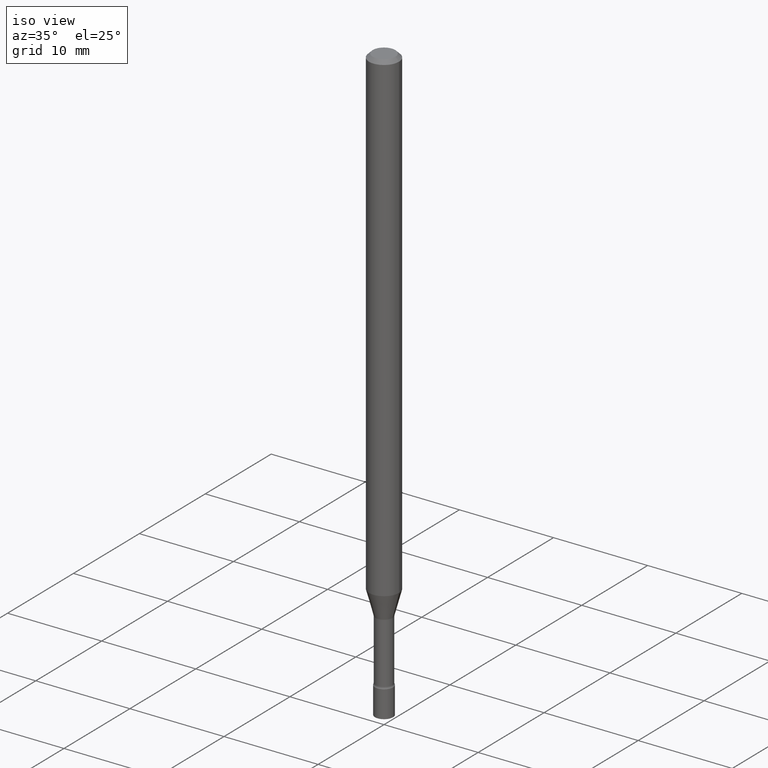
[diagram: clean part render]
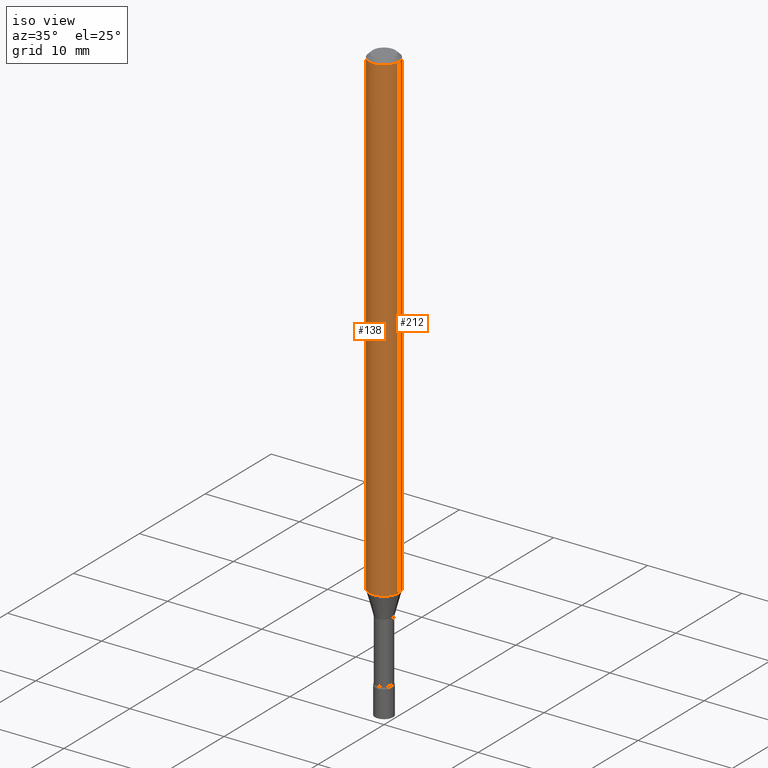
[diagram: same view with one multi-face feature highlighted, each face labeled with its STEP entity id]
A machine part, iso view. The highlighted faces form ONE feature: a constant-radius fillet chain: 2 tangent blend faces with common blend radius 1.5875 mm. The faces share edges in the B-rep.
Their STEP definitions:
[1] entity #138 (Cylinder):
#1 = EDGE_CURVE ( 'NONE', #271, #263, #385, .T. ) ;
#8 = AXIS2_PLACEMENT_3D ( 'NONE', #512, #240, #83 ) ;
#20 = CARTESIAN_POINT ( 'NONE',  ( 0.06250000000000000000, -4.364351673553916694E-16, 3.047610484872459871E-30 ) ) ;
#29 = CYLINDRICAL_SURFACE ( 'NONE', #8, 0.06250000000000000000 ) ;
#40 = VERTEX_POINT ( 'NONE', #189 ) ;
#53 = VECTOR ( 'NONE', #232, 39.37007874015748143 ) ;
#62 = CARTESIAN_POINT ( 'NONE',  ( 4.947920986193955666E-29, -7.064319833347612909E-15, -2.023301615493748873 ) ) ;
#68 = LINE ( 'NONE', #515, #53 ) ;
#80 = FACE_OUTER_BOUND ( 'NONE', #261, .T. ) ;
#83 = DIRECTION ( 'NONE',  ( 1.000000000000000000, -6.982962677686266711E-15, 4.876176775795935793E-29 ) ) ;
#99 = CARTESIAN_POINT ( 'NONE',  ( 3.668203209277712094E-31, -5.237222008264728876E-17, -0.01500000000000003067 ) ) ;
#138 = ADVANCED_FACE ( 'NONE', ( #80 ), #29, .T. ) ;
#154 = CARTESIAN_POINT ( 'NONE',  ( 0.06250000000000000000, -7.500755000703003789E-15, -2.023301615493748873 ) ) ;
#189 = CARTESIAN_POINT ( 'NONE',  ( 0.06250000000000000000, -4.888073874380389458E-16, -0.01500000000000003067 ) ) ;
#190 = ORIENTED_EDGE ( 'NONE', *, *, #476, .F. ) ;
#195 = LINE ( 'NONE', #20, #502 ) ;
#227 = VERTEX_POINT ( 'NONE', #276 ) ;
#229 = DIRECTION ( 'NONE',  ( 1.000000000000000000, -6.982962677686262766E-15, 0.000000000000000000 ) ) ;
#232 = DIRECTION ( 'NONE',  ( -2.445468806185136877E-29, 3.491481338843145188E-15, 1.000000000000000000 ) ) ;
#240 = DIRECTION ( 'NONE',  ( -2.445468806185136597E-29, 3.491481338843145583E-15, 1.000000000000000000 ) ) ;
#249 = AXIS2_PLACEMENT_3D ( 'NONE', #62, #380, #229 ) ;
#256 = ORIENTED_EDGE ( 'NONE', *, *, #1, .T. ) ;
#261 = EDGE_LOOP ( 'NONE', ( #190, #256, #278, #389 ) ) ;
#263 = VERTEX_POINT ( 'NONE', #154 ) ;
#271 = VERTEX_POINT ( 'NONE', #449 ) ;
#276 = CARTESIAN_POINT ( 'NONE',  ( -0.06250000000000000000, -3.114256816865067970E-15, -0.01500000000000003067 ) ) ;
#278 = ORIENTED_EDGE ( 'NONE', *, *, #448, .T. ) ;
#315 = EDGE_CURVE ( 'NONE', #227, #40, #399, .T. ) ;
#340 = DIRECTION ( 'NONE',  ( -2.445468806185136877E-29, 3.491481338843145188E-15, 1.000000000000000000 ) ) ;
#368 = DIRECTION ( 'NONE',  ( 1.000000000000000000, -6.982962677686266711E-15, 0.000000000000000000 ) ) ;
#371 = AXIS2_PLACEMENT_3D ( 'NONE', #99, #413, #368 ) ;
#380 = DIRECTION ( 'NONE',  ( -2.445468806185136597E-29, 3.491481338843145583E-15, 1.000000000000000000 ) ) ;
#385 = CIRCLE ( 'NONE', #249, 0.06250000000000000000 ) ;
#389 = ORIENTED_EDGE ( 'NONE', *, *, #315, .F. ) ;
#399 = CIRCLE ( 'NONE', #371, 0.06250000000000000000 ) ;
#413 = DIRECTION ( 'NONE',  ( -2.445468806185136597E-29, 3.491481338843145583E-15, 1.000000000000000000 ) ) ;
#448 = EDGE_CURVE ( 'NONE', #263, #40, #195, .T. ) ;
#449 = CARTESIAN_POINT ( 'NONE',  ( -0.06250000000000000000, -6.620230623497551082E-15, -2.023301615493748873 ) ) ;
#476 = EDGE_CURVE ( 'NONE', #271, #227, #68, .T. ) ;
#502 = VECTOR ( 'NONE', #340, 39.37007874015748143 ) ;
#512 = CARTESIAN_POINT ( 'NONE',  ( 0.000000000000000000, 0.000000000000000000, 0.000000000000000000 ) ) ;
#515 = CARTESIAN_POINT ( 'NONE',  ( -0.06250000000000000000, 4.440892098500626162E-16, -3.074334431409316114E-30 ) ) ;
[2] entity #212 (Cylinder):
#20 = CARTESIAN_POINT ( 'NONE',  ( 0.06250000000000000000, -4.364351673553916694E-16, 3.047610484872459871E-30 ) ) ;
#39 = DIRECTION ( 'NONE',  ( -2.445468806185136597E-29, 3.491481338843145583E-15, 1.000000000000000000 ) ) ;
#40 = VERTEX_POINT ( 'NONE', #189 ) ;
#42 = DIRECTION ( 'NONE',  ( 1.000000000000000000, -6.982962677686266711E-15, 0.000000000000000000 ) ) ;
#44 = AXIS2_PLACEMENT_3D ( 'NONE', #72, #78, #42 ) ;
#53 = VECTOR ( 'NONE', #232, 39.37007874015748143 ) ;
#68 = LINE ( 'NONE', #515, #53 ) ;
#72 = CARTESIAN_POINT ( 'NONE',  ( 3.668203209277712094E-31, -5.237222008264728876E-17, -0.01500000000000003067 ) ) ;
#74 = DIRECTION ( 'NONE',  ( 1.000000000000000000, -6.982962677686266711E-15, 4.876176775795935793E-29 ) ) ;
#78 = DIRECTION ( 'NONE',  ( -2.445468806185136597E-29, 3.491481338843145583E-15, 1.000000000000000000 ) ) ;
#108 = CIRCLE ( 'NONE', #44, 0.06250000000000000000 ) ;
#134 = DIRECTION ( 'NONE',  ( 1.000000000000000000, -6.982962677686262766E-15, 0.000000000000000000 ) ) ;
#150 = ORIENTED_EDGE ( 'NONE', *, *, #448, .F. ) ;
#154 = CARTESIAN_POINT ( 'NONE',  ( 0.06250000000000000000, -7.500755000703003789E-15, -2.023301615493748873 ) ) ;
#189 = CARTESIAN_POINT ( 'NONE',  ( 0.06250000000000000000, -4.888073874380389458E-16, -0.01500000000000003067 ) ) ;
#195 = LINE ( 'NONE', #20, #502 ) ;
#211 = AXIS2_PLACEMENT_3D ( 'NONE', #246, #39, #134 ) ;
#212 = ADVANCED_FACE ( 'NONE', ( #474 ), #314, .T. ) ;
#227 = VERTEX_POINT ( 'NONE', #276 ) ;
#232 = DIRECTION ( 'NONE',  ( -2.445468806185136877E-29, 3.491481338843145188E-15, 1.000000000000000000 ) ) ;
#241 = AXIS2_PLACEMENT_3D ( 'NONE', #344, #466, #74 ) ;
#246 = CARTESIAN_POINT ( 'NONE',  ( 4.947920986193955666E-29, -7.064319833347612909E-15, -2.023301615493748873 ) ) ;
#263 = VERTEX_POINT ( 'NONE', #154 ) ;
#271 = VERTEX_POINT ( 'NONE', #449 ) ;
#276 = CARTESIAN_POINT ( 'NONE',  ( -0.06250000000000000000, -3.114256816865067970E-15, -0.01500000000000003067 ) ) ;
#306 = EDGE_LOOP ( 'NONE', ( #321, #335, #427, #150 ) ) ;
#314 = CYLINDRICAL_SURFACE ( 'NONE', #241, 0.06250000000000000000 ) ;
#321 = ORIENTED_EDGE ( 'NONE', *, *, #458, .T. ) ;
#335 = ORIENTED_EDGE ( 'NONE', *, *, #476, .T. ) ;
#340 = DIRECTION ( 'NONE',  ( -2.445468806185136877E-29, 3.491481338843145188E-15, 1.000000000000000000 ) ) ;
#344 = CARTESIAN_POINT ( 'NONE',  ( 0.000000000000000000, 0.000000000000000000, 0.000000000000000000 ) ) ;
#427 = ORIENTED_EDGE ( 'NONE', *, *, #493, .F. ) ;
#432 = CIRCLE ( 'NONE', #211, 0.06250000000000000000 ) ;
#448 = EDGE_CURVE ( 'NONE', #263, #40, #195, .T. ) ;
#449 = CARTESIAN_POINT ( 'NONE',  ( -0.06250000000000000000, -6.620230623497551082E-15, -2.023301615493748873 ) ) ;
#458 = EDGE_CURVE ( 'NONE', #263, #271, #432, .T. ) ;
#466 = DIRECTION ( 'NONE',  ( -2.445468806185136597E-29, 3.491481338843145583E-15, 1.000000000000000000 ) ) ;
#474 = FACE_OUTER_BOUND ( 'NONE', #306, .T. ) ;
#476 = EDGE_CURVE ( 'NONE', #271, #227, #68, .T. ) ;
#493 = EDGE_CURVE ( 'NONE', #40, #227, #108, .T. ) ;
#502 = VECTOR ( 'NONE', #340, 39.37007874015748143 ) ;
#515 = CARTESIAN_POINT ( 'NONE',  ( -0.06250000000000000000, 4.440892098500626162E-16, -3.074334431409316114E-30 ) ) ;